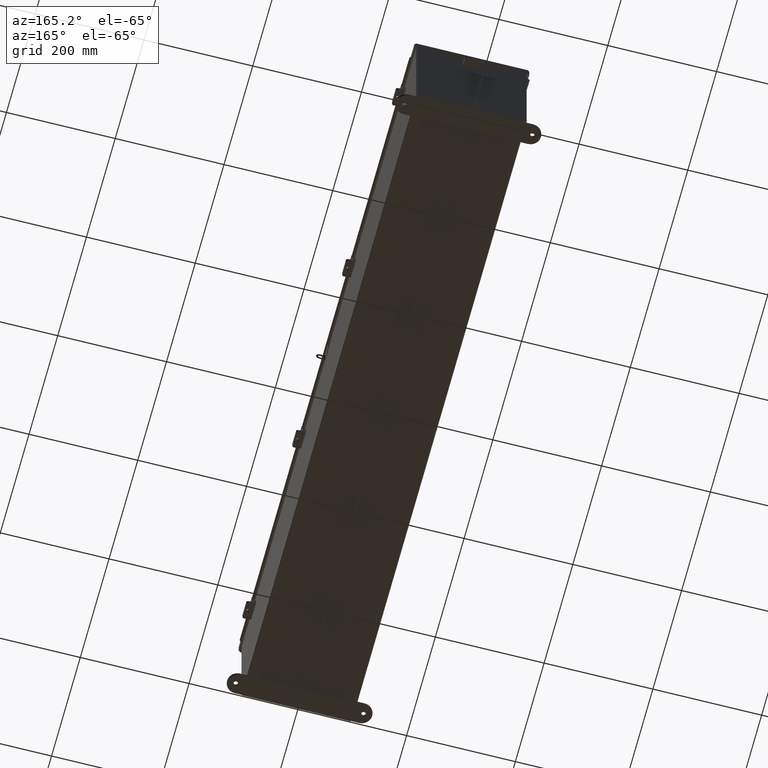
[diagram: clean part render]
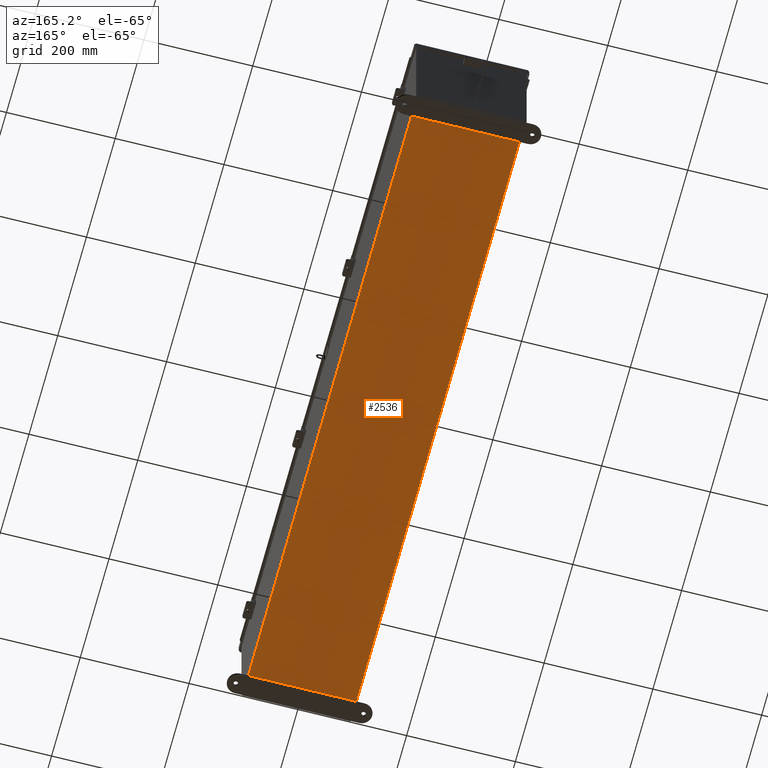
[diagram: same view with one face highlighted and labeled with its STEP entity id]
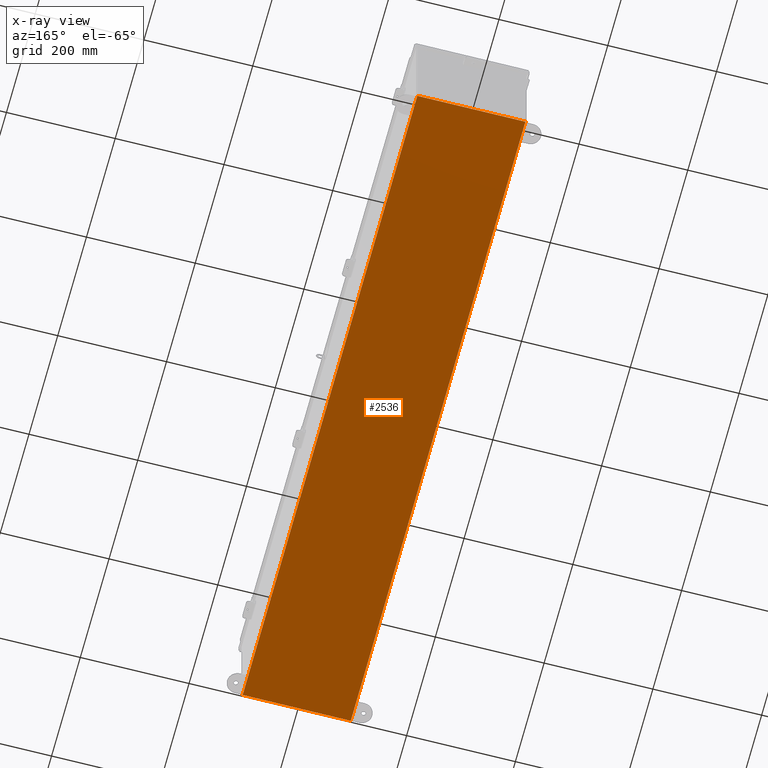
[diagram: x-ray of the same camera — body ghosted, the highlighted face saturated]
A machine part, auxiliary view. The second image highlights one B-rep face of the part: STEP entity #2536.
The next image is the same camera in x-ray: the body ghosted, the highlighted face saturated — about 0% of this face is hidden behind the body in this view.
In plain terms, the highlighted planar face has unit normal (0, 0, -1).
Its self-contained STEP definition (entity closure, byte-faithful):
#1209 = CARTESIAN_POINT ( 'NONE',  ( -3.912300000000001400, -23.92529999999999600, -0.07470000000000022500 ) ) ;
#2536 = ADVANCED_FACE ( 'NONE', ( #16352 ), #28672, .T. ) ;
#3348 = DIRECTION ( 'NONE',  ( 0.0000000000000000000, 0.0000000000000000000, -1.000000000000000000 ) ) ;
#3845 = CARTESIAN_POINT ( 'NONE',  ( -4.000000000000001800, -23.92530000000000000, -0.07470000000000000300 ) ) ;
#4576 = ORIENTED_EDGE ( 'NONE', *, *, #28589, .F. ) ;
#5131 = CARTESIAN_POINT ( 'NONE',  ( -3.912300000000001400, 23.92530000000000700, -0.07470000000000000300 ) ) ;
#5909 = ORIENTED_EDGE ( 'NONE', *, *, #30363, .F. ) ;
#10556 = EDGE_LOOP ( 'NONE', ( #5909, #17513, #4576, #20168 ) ) ;
#11022 = VECTOR ( 'NONE', #14978, 39.37007874015748100 ) ;
#11631 = CARTESIAN_POINT ( 'NONE',  ( 0.0000000000000000000, 0.0000000000000000000, -0.07470000000000000300 ) ) ;
#11921 = LINE ( 'NONE', #23378, #11022 ) ;
#12413 = VERTEX_POINT ( 'NONE', #1209 ) ;
#12587 = CARTESIAN_POINT ( 'NONE',  ( 3.912299999999997900, 23.92529999999998900, -0.07470000000000300000 ) ) ;
#13551 = LINE ( 'NONE', #23121, #20180 ) ;
#14978 = DIRECTION ( 'NONE',  ( -1.000000000000000000, -0.0000000000000000000, -0.0000000000000000000 ) ) ;
#15087 = DIRECTION ( 'NONE',  ( 1.000000000000000000, 5.463695987328526400E-016, 0.0000000000000000000 ) ) ;
#16352 = FACE_OUTER_BOUND ( 'NONE', #10556, .T. ) ;
#17429 = DIRECTION ( 'NONE',  ( -0.0000000000000000000, -1.000000000000000000, 8.208677865577646300E-017 ) ) ;
#17513 = ORIENTED_EDGE ( 'NONE', *, *, #24768, .T. ) ;
#17781 = VERTEX_POINT ( 'NONE', #5131 ) ;
#18618 = LINE ( 'NONE', #3845, #18994 ) ;
#18994 = VECTOR ( 'NONE', #15087, 39.37007874015748100 ) ;
#20168 = ORIENTED_EDGE ( 'NONE', *, *, #26969, .T. ) ;
#20180 = VECTOR ( 'NONE', #17429, 39.37007874015748100 ) ;
#20902 = VERTEX_POINT ( 'NONE', #12587 ) ;
#23117 = DIRECTION ( 'NONE',  ( -1.000000000000000000, 0.0000000000000000000, -0.0000000000000000000 ) ) ;
#23121 = CARTESIAN_POINT ( 'NONE',  ( 3.912299999999997900, 23.92530000000000000, -0.07470000000000300000 ) ) ;
#23378 = CARTESIAN_POINT ( 'NONE',  ( -4.000000000000001800, 23.92530000000000700, -0.07470000000000000300 ) ) ;
#24768 = EDGE_CURVE ( 'NONE', #20902, #31283, #13551, .T. ) ;
#25309 = CARTESIAN_POINT ( 'NONE',  ( 3.912299999999997900, -23.92529999999998200, -0.07470000000000000300 ) ) ;
#26231 = VECTOR ( 'NONE', #34280, 39.37007874015748100 ) ;
#26969 = EDGE_CURVE ( 'NONE', #12413, #17781, #27112, .T. ) ;
#27112 = LINE ( 'NONE', #31444, #26231 ) ;
#28589 = EDGE_CURVE ( 'NONE', #12413, #31283, #18618, .T. ) ;
#28672 = PLANE ( 'NONE',  #34387 ) ;
#30363 = EDGE_CURVE ( 'NONE', #20902, #17781, #11921, .T. ) ;
#31283 = VERTEX_POINT ( 'NONE', #25309 ) ;
#31444 = CARTESIAN_POINT ( 'NONE',  ( -3.912300000000001400, -23.92530000000000000, -0.07470000000000022500 ) ) ;
#34280 = DIRECTION ( 'NONE',  ( -0.0000000000000000000, 1.000000000000000000, -0.0000000000000000000 ) ) ;
#34387 = AXIS2_PLACEMENT_3D ( 'NONE', #11631, #3348, #23117 ) ;